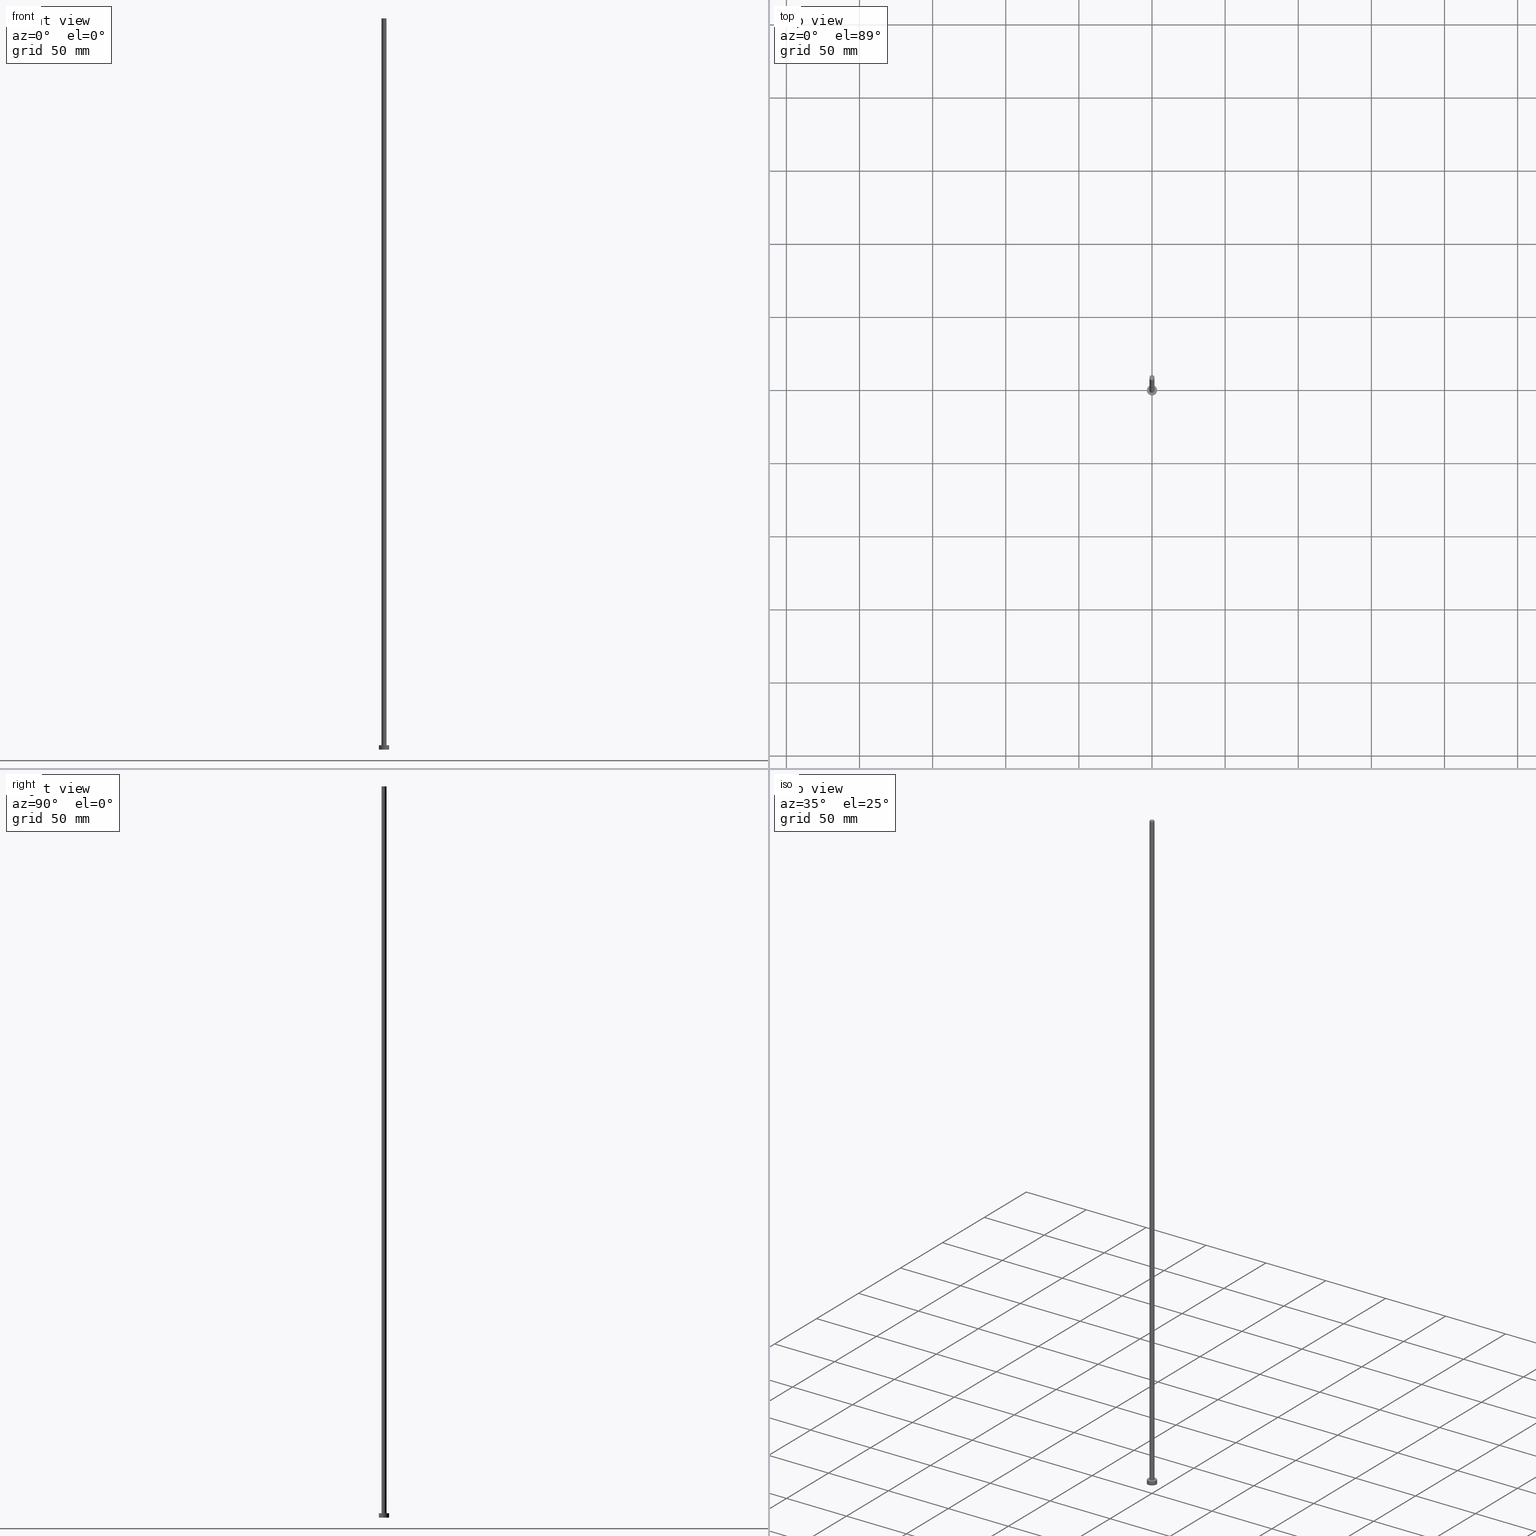
[diagram: canonical four-view strip — front | top / right | iso, engineering-drawing reading convention]
A machine part, canonical four-view strip (front | top / right | iso — engineering-drawing reading convention). The complete STEP part file that produces these views, byte-faithful:
ISO-10303-21;
HEADER;
FILE_DESCRIPTION (( 'STEP AP203' ),
    '1' );
FILE_NAME ('6f6c.STEP',
    '2023-02-12T12:40:46',
    ( '' ),
    ( '' ),
    'SwSTEP 2.0',
    'SolidWorks 2019',
    '' );
FILE_SCHEMA (( 'CONFIG_CONTROL_DESIGN' ));
ENDSEC;

DATA;
#1 = CIRCLE ( 'NONE', #238, 3.500000000000000444 ) ;
#2 = MANIFOLD_SOLID_BREP ( 'P�idat vysunut�m3', #151 ) ;
#3 = CYLINDRICAL_SURFACE ( 'NONE', #156, 3.500000000000000444 ) ;
#4 = EDGE_CURVE ( 'NONE', #187, #150, #153, .T. ) ;
#5 = LINE ( 'NONE', #60, #47 ) ;
#6 = FACE_OUTER_BOUND ( 'NONE', #209, .T. ) ;
#7 = COORDINATED_UNIVERSAL_TIME_OFFSET ( 1, 0, .AHEAD. ) ;
#8 = DIRECTION ( 'NONE',  ( 1.000000000000000000, 0.000000000000000000, 0.000000000000000000 ) ) ;
#9 = CC_DESIGN_PERSON_AND_ORGANIZATION_ASSIGNMENT ( #198, #223, ( #13 ) ) ;
#10 = CARTESIAN_POINT ( 'NONE',  ( 1.750000000000000000, 2.143131898507867804E-16, 500.0000000000000000 ) ) ;
#11 = DIRECTION ( 'NONE',  ( -0.000000000000000000, -0.000000000000000000, -1.000000000000000000 ) ) ;
#12 = PERSON ( 'NEUR�EN�', 'NEUR�EN�', 'NEUR�EN�', ('NEUR�EN�'), ('NEUR�EN�'), ('NEUR�EN�') ) ;
#13 = PRODUCT ( '6f6c', '6f6c', '', ( #44 ) ) ;
#14 = CARTESIAN_POINT ( 'NONE',  ( 0.000000000000000000, 0.000000000000000000, 3.000000000000000000 ) ) ;
#15 = ORIENTED_EDGE ( 'NONE', *, *, #188, .T. ) ;
#16 = PRODUCT_DEFINITION_SHAPE ( 'NONE', 'NONE',  #116 ) ;
#17 = CC_DESIGN_APPROVAL ( #216, ( #116 ) ) ;
#18 = CARTESIAN_POINT ( 'NONE',  ( -1.750000000000000000, 0.000000000000000000, 500.0000000000000000 ) ) ;
#19 = CARTESIAN_POINT ( 'NONE',  ( -3.500000000000000444, 0.000000000000000000, 0.000000000000000000 ) ) ;
#20 = CIRCLE ( 'NONE', #56, 3.500000000000000444 ) ;
#21 = VERTEX_POINT ( 'NONE', #135 ) ;
#22 = ADVANCED_FACE ( 'NONE', ( #58 ), #158, .F. ) ;
#23 = APPROVAL_PERSON_ORGANIZATION ( #204, #84, #181 ) ;
#24 = CC_DESIGN_APPROVAL ( #84, ( #33 ) ) ;
#25 = EDGE_CURVE ( 'NONE', #187, #212, #119, .T. ) ;
#26 = FACE_OUTER_BOUND ( 'NONE', #149, .T. ) ;
#27 = DIRECTION ( 'NONE',  ( 0.000000000000000000, 0.000000000000000000, 1.000000000000000000 ) ) ;
#28 = APPROVAL_STATUS ( 'not_yet_approved' ) ;
#29 = DIRECTION ( 'NONE',  ( 0.000000000000000000, 0.000000000000000000, 1.000000000000000000 ) ) ;
#30 = SECURITY_CLASSIFICATION_LEVEL ( 'unclassified' ) ;
#31 = LINE ( 'NONE', #10, #113 ) ;
#32 = PERSON_AND_ORGANIZATION_ROLE ( 'classification_officer' ) ;
#33 = SECURITY_CLASSIFICATION ( '', '', #30 ) ;
#34 = DIRECTION ( 'NONE',  ( -0.000000000000000000, -0.000000000000000000, -1.000000000000000000 ) ) ;
#35 = EDGE_LOOP ( 'NONE', ( #76, #194 ) ) ;
#36 = AXIS2_PLACEMENT_3D ( 'NONE', #105, #88, #241 ) ;
#37 = ADVANCED_FACE ( 'NONE', ( #177 ), #126, .T. ) ;
#38 = EDGE_LOOP ( 'NONE', ( #230, #193, #191, #133 ) ) ;
#39 = ORIENTED_EDGE ( 'NONE', *, *, #185, .T. ) ;
#40 = LOCAL_TIME ( 13, 40, 46.00000000000000000, #239 ) ;
#41 = APPLICATION_CONTEXT ( 'configuration controlled 3d designs of mechanical parts and assemblies' ) ;
#42 = EDGE_LOOP ( 'NONE', ( #215, #81 ) ) ;
#43 = EDGE_CURVE ( 'NONE', #111, #178, #143, .T. ) ;
#44 = MECHANICAL_CONTEXT ( 'NONE', #203, 'mechanical' ) ;
#45 = DIRECTION ( 'NONE',  ( 0.000000000000000000, 0.000000000000000000, 1.000000000000000000 ) ) ;
#46 =( NAMED_UNIT ( * ) SI_UNIT ( $, .STERADIAN. ) SOLID_ANGLE_UNIT ( ) );
#47 = VECTOR ( 'NONE', #34, 1000.000000000000000 ) ;
#48 = APPROVAL_DATE_TIME ( #137, #216 ) ;
#49 = ORIENTED_EDGE ( 'NONE', *, *, #134, .F. ) ;
#50 = DIRECTION ( 'NONE',  ( -0.000000000000000000, -0.000000000000000000, -1.000000000000000000 ) ) ;
#51 = VECTOR ( 'NONE', #64, 1000.000000000000000 ) ;
#52 = PERSON_AND_ORGANIZATION ( #12, #154 ) ;
#53 = CALENDAR_DATE ( 2023, 12, 2 ) ;
#54 = CYLINDRICAL_SURFACE ( 'NONE', #61, 3.500000000000000444 ) ;
#55 = DATE_TIME_ROLE ( 'classification_date' ) ;
#56 = AXIS2_PLACEMENT_3D ( 'NONE', #199, #165, #227 ) ;
#57 = DIRECTION ( 'NONE',  ( -0.000000000000000000, -0.000000000000000000, -1.000000000000000000 ) ) ;
#58 = FACE_OUTER_BOUND ( 'NONE', #95, .T. ) ;
#59 = CC_DESIGN_DATE_AND_TIME_ASSIGNMENT ( #146, #164, ( #116 ) ) ;
#60 = CARTESIAN_POINT ( 'NONE',  ( -3.500000000000000444, 0.000000000000000000, 3.000000000000000000 ) ) ;
#61 = AXIS2_PLACEMENT_3D ( 'NONE', #73, #147, #202 ) ;
#62 = CIRCLE ( 'NONE', #180, 1.750000000000000000 ) ;
#63 = ORIENTED_EDGE ( 'NONE', *, *, #250, .F. ) ;
#64 = DIRECTION ( 'NONE',  ( -0.000000000000000000, -0.000000000000000000, -1.000000000000000000 ) ) ;
#65 = CIRCLE ( 'NONE', #205, 1.750000000000000000 ) ;
#66 = CC_DESIGN_PERSON_AND_ORGANIZATION_ASSIGNMENT ( #142, #226, ( #102 ) ) ;
#67 = DIRECTION ( 'NONE',  ( 0.000000000000000000, 0.000000000000000000, 1.000000000000000000 ) ) ;
#68 =( LENGTH_UNIT ( ) NAMED_UNIT ( * ) SI_UNIT ( .MILLI., .METRE. ) );
#69 = CALENDAR_DATE ( 2023, 12, 2 ) ;
#70 = CARTESIAN_POINT ( 'NONE',  ( 0.000000000000000000, 0.000000000000000000, 0.000000000000000000 ) ) ;
#71 = CARTESIAN_POINT ( 'NONE',  ( 0.000000000000000000, 0.000000000000000000, 500.0000000000000000 ) ) ;
#72 = LOCAL_TIME ( 13, 40, 46.00000000000000000, #104 ) ;
#73 = CARTESIAN_POINT ( 'NONE',  ( 0.000000000000000000, 0.000000000000000000, 3.000000000000000000 ) ) ;
#74 = DATE_AND_TIME ( #168, #130 ) ;
#75 = CYLINDRICAL_SURFACE ( 'NONE', #129, 1.750000000000000000 ) ;
#76 = ORIENTED_EDGE ( 'NONE', *, *, #25, .T. ) ;
#77 = EDGE_CURVE ( 'NONE', #178, #112, #94, .T. ) ;
#78 = DIRECTION ( 'NONE',  ( 1.000000000000000000, 0.000000000000000000, 0.000000000000000000 ) ) ;
#79 = AXIS2_PLACEMENT_3D ( 'NONE', #161, #175, #8 ) ;
#80 = DIRECTION ( 'NONE',  ( 0.000000000000000000, 0.000000000000000000, 1.000000000000000000 ) ) ;
#81 = ORIENTED_EDGE ( 'NONE', *, *, #234, .T. ) ;
#82 = ADVANCED_FACE ( 'NONE', ( #6 ), #75, .T. ) ;
#83 = CARTESIAN_POINT ( 'NONE',  ( 0.000000000000000000, 0.000000000000000000, 500.0000000000000000 ) ) ;
#84 = APPROVAL ( #107, 'NEUR�EN�' ) ;
#85 = CARTESIAN_POINT ( 'NONE',  ( 0.000000000000000000, 0.000000000000000000, 3.000000000000000000 ) ) ;
#86 = EDGE_CURVE ( 'NONE', #21, #111, #20, .T. ) ;
#87 = CIRCLE ( 'NONE', #236, 3.500000000000000444 ) ;
#88 = DIRECTION ( 'NONE',  ( -0.000000000000000000, -0.000000000000000000, -1.000000000000000000 ) ) ;
#89 = ORIENTED_EDGE ( 'NONE', *, *, #207, .F. ) ;
#90 = COORDINATED_UNIVERSAL_TIME_OFFSET ( 1, 0, .AHEAD. ) ;
#91 = ADVANCED_FACE ( 'NONE', ( #26 ), #54, .T. ) ;
#92 = DATE_AND_TIME ( #245, #93 ) ;
#93 = LOCAL_TIME ( 13, 40, 46.00000000000000000, #7 ) ;
#94 = CIRCLE ( 'NONE', #210, 3.500000000000000444 ) ;
#95 = EDGE_LOOP ( 'NONE', ( #49, #254 ) ) ;
#96 = EDGE_LOOP ( 'NONE', ( #89, #217 ) ) ;
#97 = CARTESIAN_POINT ( 'NONE',  ( 0.000000000000000000, 0.000000000000000000, 0.000000000000000000 ) ) ;
#98 = ADVANCED_FACE ( 'NONE', ( #219 ), #100, .T. ) ;
#99 = EDGE_LOOP ( 'NONE', ( #63, #248, #15, #132 ) ) ;
#100 = PLANE ( 'NONE',  #163 ) ;
#101 = ORIENTED_EDGE ( 'NONE', *, *, #4, .T. ) ;
#102 = PRODUCT_DEFINITION_FORMATION_WITH_SPECIFIED_SOURCE ( 'LIBOVOLN�', '', #13, .NOT_KNOWN. ) ;
#103 = CARTESIAN_POINT ( 'NONE',  ( 3.500000000000000444, 4.286263797015737088E-16, 0.000000000000000000 ) ) ;
#104 = COORDINATED_UNIVERSAL_TIME_OFFSET ( 1, 0, .AHEAD. ) ;
#105 = CARTESIAN_POINT ( 'NONE',  ( 0.000000000000000000, 0.000000000000000000, 500.0000000000000000 ) ) ;
#106 = APPROVAL_PERSON_ORGANIZATION ( #195, #216, #174 ) ;
#107 = APPROVAL_STATUS ( 'not_yet_approved' ) ;
#108 = DIRECTION ( 'NONE',  ( 1.000000000000000000, 0.000000000000000000, 0.000000000000000000 ) ) ;
#109 = APPROVAL_DATE_TIME ( #124, #220 ) ;
#110 = AXIS2_PLACEMENT_3D ( 'NONE', #252, #80, #189 ) ;
#111 = VERTEX_POINT ( 'NONE', #152 ) ;
#112 = VERTEX_POINT ( 'NONE', #19 ) ;
#113 = VECTOR ( 'NONE', #57, 1000.000000000000000 ) ;
#114 = ORIENTED_EDGE ( 'NONE', *, *, #134, .T. ) ;
#115 = CARTESIAN_POINT ( 'NONE',  ( 0.000000000000000000, 0.000000000000000000, 500.0000000000000000 ) ) ;
#116 = PRODUCT_DEFINITION ( 'NEZN�M�', '', #102, #253 ) ;
#117 = DIRECTION ( 'NONE',  ( 1.000000000000000000, 0.000000000000000000, -0.000000000000000000 ) ) ;
#118 = DIRECTION ( 'NONE',  ( 1.000000000000000000, 0.000000000000000000, 0.000000000000000000 ) ) ;
#119 = CIRCLE ( 'NONE', #79, 1.750000000000000000 ) ;
#120 = APPLICATION_PROTOCOL_DEFINITION ( 'international standard', 'config_control_design', 1994, #41 ) ;
#121 = DIRECTION ( 'NONE',  ( -1.000000000000000000, 0.000000000000000000, 0.000000000000000000 ) ) ;
#122 = CC_DESIGN_PERSON_AND_ORGANIZATION_ASSIGNMENT ( #197, #200, ( #116 ) ) ;
#123 = FACE_OUTER_BOUND ( 'NONE', #42, .T. ) ;
#124 = DATE_AND_TIME ( #228, #72 ) ;
#125 = AXIS2_PLACEMENT_3D ( 'NONE', #182, #29, #148 ) ;
#126 = CYLINDRICAL_SURFACE ( 'NONE', #36, 1.750000000000000000 ) ;
#127 = CC_DESIGN_DATE_AND_TIME_ASSIGNMENT ( #92, #55, ( #33 ) ) ;
#128 = APPLICATION_PROTOCOL_DEFINITION ( 'international standard', 'config_control_design', 1994, #203 ) ;
#129 = AXIS2_PLACEMENT_3D ( 'NONE', #71, #50, #121 ) ;
#130 = LOCAL_TIME ( 13, 40, 46.00000000000000000, #90 ) ;
#131 = UNCERTAINTY_MEASURE_WITH_UNIT (LENGTH_MEASURE( 1.000000000000000082E-05 ), #68, 'distance_accuracy_value', 'NONE');
#132 = ORIENTED_EDGE ( 'NONE', *, *, #4, .F. ) ;
#133 = ORIENTED_EDGE ( 'NONE', *, *, #185, .F. ) ;
#134 = EDGE_CURVE ( 'NONE', #112, #178, #87, .T. ) ;
#135 = CARTESIAN_POINT ( 'NONE',  ( -3.500000000000000444, 0.000000000000000000, 3.000000000000000000 ) ) ;
#136 = CARTESIAN_POINT ( 'NONE',  ( 0.000000000000000000, 0.000000000000000000, 3.000000000000000000 ) ) ;
#137 = DATE_AND_TIME ( #69, #40 ) ;
#138 = DIRECTION ( 'NONE',  ( 1.000000000000000000, 0.000000000000000000, 0.000000000000000000 ) ) ;
#139 = DIRECTION ( 'NONE',  ( 0.000000000000000000, 0.000000000000000000, 1.000000000000000000 ) ) ;
#140 = EDGE_CURVE ( 'NONE', #212, #232, #31, .T. ) ;
#141 = VECTOR ( 'NONE', #11, 1000.000000000000000 ) ;
#142 = PERSON_AND_ORGANIZATION ( #12, #154 ) ;
#143 = LINE ( 'NONE', #246, #141 ) ;
#144 =( GEOMETRIC_REPRESENTATION_CONTEXT ( 3 ) GLOBAL_UNCERTAINTY_ASSIGNED_CONTEXT ( ( #131 ) ) GLOBAL_UNIT_ASSIGNED_CONTEXT ( ( #68, #173, #46 ) ) REPRESENTATION_CONTEXT ( 'NONE', 'WORKASPACE' ) );
#145 = ADVANCED_FACE ( 'NONE', ( #206 ), #3, .T. ) ;
#146 = DATE_AND_TIME ( #53, #244 ) ;
#147 = DIRECTION ( 'NONE',  ( -0.000000000000000000, -0.000000000000000000, -1.000000000000000000 ) ) ;
#148 = DIRECTION ( 'NONE',  ( 1.000000000000000000, 0.000000000000000000, -0.000000000000000000 ) ) ;
#149 = EDGE_LOOP ( 'NONE', ( #196, #162, #39, #114 ) ) ;
#150 = VERTEX_POINT ( 'NONE', #159 ) ;
#151 = CLOSED_SHELL ( 'NONE', ( #37, #145, #91, #155, #22, #82, #98 ) ) ;
#152 = CARTESIAN_POINT ( 'NONE',  ( 3.500000000000000444, 4.286263797015737088E-16, 3.000000000000000000 ) ) ;
#153 = LINE ( 'NONE', #18, #51 ) ;
#154 = ORGANIZATION ( 'NEUR�EN�', 'NEUR�EN�', '' ) ;
#155 = ADVANCED_FACE ( 'NONE', ( #240, #123 ), #222, .T. ) ;
#156 = AXIS2_PLACEMENT_3D ( 'NONE', #85, #183, #157 ) ;
#157 = DIRECTION ( 'NONE',  ( -1.000000000000000000, 0.000000000000000000, 0.000000000000000000 ) ) ;
#158 = PLANE ( 'NONE',  #125 ) ;
#159 = CARTESIAN_POINT ( 'NONE',  ( -1.750000000000000000, 0.000000000000000000, 3.000000000000000000 ) ) ;
#160 = APPROVAL_ROLE ( '' ) ;
#161 = CARTESIAN_POINT ( 'NONE',  ( 0.000000000000000000, 0.000000000000000000, 500.0000000000000000 ) ) ;
#162 = ORIENTED_EDGE ( 'NONE', *, *, #86, .F. ) ;
#163 = AXIS2_PLACEMENT_3D ( 'NONE', #83, #45, #117 ) ;
#164 = DATE_TIME_ROLE ( 'creation_date' ) ;
#165 = DIRECTION ( 'NONE',  ( 0.000000000000000000, 0.000000000000000000, 1.000000000000000000 ) ) ;
#166 = CC_DESIGN_SECURITY_CLASSIFICATION ( #33, ( #102 ) ) ;
#167 = PERSON_AND_ORGANIZATION ( #12, #154 ) ;
#168 = CALENDAR_DATE ( 2023, 12, 2 ) ;
#169 = ORIENTED_EDGE ( 'NONE', *, *, #140, .F. ) ;
#170 = ADVANCED_BREP_SHAPE_REPRESENTATION ( '6f6c', ( #2, #214 ), #144 ) ;
#171 = CC_DESIGN_PERSON_AND_ORGANIZATION_ASSIGNMENT ( #179, #201, ( #102 ) ) ;
#172 = APPROVAL_PERSON_ORGANIZATION ( #52, #220, #160 ) ;
#173 =( NAMED_UNIT ( * ) PLANE_ANGLE_UNIT ( ) SI_UNIT ( $, .RADIAN. ) );
#174 = APPROVAL_ROLE ( '' ) ;
#175 = DIRECTION ( 'NONE',  ( 0.000000000000000000, 0.000000000000000000, 1.000000000000000000 ) ) ;
#176 = DIRECTION ( 'NONE',  ( 0.000000000000000000, 0.000000000000000000, 1.000000000000000000 ) ) ;
#177 = FACE_OUTER_BOUND ( 'NONE', #99, .T. ) ;
#178 = VERTEX_POINT ( 'NONE', #103 ) ;
#179 = PERSON_AND_ORGANIZATION ( #12, #154 ) ;
#180 = AXIS2_PLACEMENT_3D ( 'NONE', #14, #251, #78 ) ;
#181 = APPROVAL_ROLE ( '' ) ;
#182 = CARTESIAN_POINT ( 'NONE',  ( 0.000000000000000000, 0.000000000000000000, 0.000000000000000000 ) ) ;
#183 = DIRECTION ( 'NONE',  ( -0.000000000000000000, -0.000000000000000000, -1.000000000000000000 ) ) ;
#184 = SHAPE_DEFINITION_REPRESENTATION ( #16, #170 ) ;
#185 = EDGE_CURVE ( 'NONE', #21, #112, #5, .T. ) ;
#186 = CARTESIAN_POINT ( 'NONE',  ( -1.750000000000000000, 0.000000000000000000, 500.0000000000000000 ) ) ;
#187 = VERTEX_POINT ( 'NONE', #186 ) ;
#188 = EDGE_CURVE ( 'NONE', #232, #150, #62, .T. ) ;
#189 = DIRECTION ( 'NONE',  ( 1.000000000000000000, 0.000000000000000000, 0.000000000000000000 ) ) ;
#190 = AXIS2_PLACEMENT_3D ( 'NONE', #242, #27, #243 ) ;
#191 = ORIENTED_EDGE ( 'NONE', *, *, #77, .T. ) ;
#192 = APPROVAL_STATUS ( 'not_yet_approved' ) ;
#193 = ORIENTED_EDGE ( 'NONE', *, *, #43, .T. ) ;
#194 = ORIENTED_EDGE ( 'NONE', *, *, #250, .T. ) ;
#195 = PERSON_AND_ORGANIZATION ( #12, #154 ) ;
#196 = ORIENTED_EDGE ( 'NONE', *, *, #43, .F. ) ;
#197 = PERSON_AND_ORGANIZATION ( #12, #154 ) ;
#198 = PERSON_AND_ORGANIZATION ( #12, #154 ) ;
#199 = CARTESIAN_POINT ( 'NONE',  ( 0.000000000000000000, 0.000000000000000000, 3.000000000000000000 ) ) ;
#200 = PERSON_AND_ORGANIZATION_ROLE ( 'creator' ) ;
#201 = PERSON_AND_ORGANIZATION_ROLE ( 'design_supplier' ) ;
#202 = DIRECTION ( 'NONE',  ( -1.000000000000000000, 0.000000000000000000, 0.000000000000000000 ) ) ;
#203 = APPLICATION_CONTEXT ( 'configuration controlled 3d designs of mechanical parts and assemblies' ) ;
#204 = PERSON_AND_ORGANIZATION ( #12, #154 ) ;
#205 = AXIS2_PLACEMENT_3D ( 'NONE', #115, #255, #237 ) ;
#206 = FACE_OUTER_BOUND ( 'NONE', #38, .T. ) ;
#207 = EDGE_CURVE ( 'NONE', #150, #232, #211, .T. ) ;
#208 = COORDINATED_UNIVERSAL_TIME_OFFSET ( 1, 0, .AHEAD. ) ;
#209 = EDGE_LOOP ( 'NONE', ( #169, #233, #101, #221 ) ) ;
#210 = AXIS2_PLACEMENT_3D ( 'NONE', #247, #139, #225 ) ;
#211 = CIRCLE ( 'NONE', #110, 1.750000000000000000 ) ;
#212 = VERTEX_POINT ( 'NONE', #213 ) ;
#213 = CARTESIAN_POINT ( 'NONE',  ( 1.750000000000000000, 2.143131898507867804E-16, 500.0000000000000000 ) ) ;
#214 = AXIS2_PLACEMENT_3D ( 'NONE', #70, #67, #138 ) ;
#215 = ORIENTED_EDGE ( 'NONE', *, *, #86, .T. ) ;
#216 = APPROVAL ( #192, 'NEUR�EN�' ) ;
#217 = ORIENTED_EDGE ( 'NONE', *, *, #188, .F. ) ;
#218 = DIRECTION ( 'NONE',  ( 0.000000000000000000, 0.000000000000000000, 1.000000000000000000 ) ) ;
#219 = FACE_OUTER_BOUND ( 'NONE', #35, .T. ) ;
#220 = APPROVAL ( #28, 'NEUR�EN�' ) ;
#221 = ORIENTED_EDGE ( 'NONE', *, *, #207, .T. ) ;
#222 = PLANE ( 'NONE',  #190 ) ;
#223 = PERSON_AND_ORGANIZATION_ROLE ( 'design_owner' ) ;
#224 = PRODUCT_RELATED_PRODUCT_CATEGORY ( 'detail', '', ( #13 ) ) ;
#225 = DIRECTION ( 'NONE',  ( 1.000000000000000000, 0.000000000000000000, 0.000000000000000000 ) ) ;
#226 = PERSON_AND_ORGANIZATION_ROLE ( 'creator' ) ;
#227 = DIRECTION ( 'NONE',  ( 1.000000000000000000, 0.000000000000000000, 0.000000000000000000 ) ) ;
#228 = CALENDAR_DATE ( 2023, 12, 2 ) ;
#229 = APPROVAL_DATE_TIME ( #74, #84 ) ;
#230 = ORIENTED_EDGE ( 'NONE', *, *, #234, .F. ) ;
#231 = CC_DESIGN_PERSON_AND_ORGANIZATION_ASSIGNMENT ( #167, #32, ( #33 ) ) ;
#232 = VERTEX_POINT ( 'NONE', #235 ) ;
#233 = ORIENTED_EDGE ( 'NONE', *, *, #25, .F. ) ;
#234 = EDGE_CURVE ( 'NONE', #111, #21, #1, .T. ) ;
#235 = CARTESIAN_POINT ( 'NONE',  ( 1.750000000000000000, 2.143131898507867804E-16, 3.000000000000000000 ) ) ;
#236 = AXIS2_PLACEMENT_3D ( 'NONE', #97, #176, #108 ) ;
#237 = DIRECTION ( 'NONE',  ( 1.000000000000000000, 0.000000000000000000, 0.000000000000000000 ) ) ;
#238 = AXIS2_PLACEMENT_3D ( 'NONE', #136, #218, #118 ) ;
#239 = COORDINATED_UNIVERSAL_TIME_OFFSET ( 1, 0, .AHEAD. ) ;
#240 = FACE_BOUND ( 'NONE', #96, .T. ) ;
#241 = DIRECTION ( 'NONE',  ( -1.000000000000000000, 0.000000000000000000, 0.000000000000000000 ) ) ;
#242 = CARTESIAN_POINT ( 'NONE',  ( 0.000000000000000000, 0.000000000000000000, 3.000000000000000000 ) ) ;
#243 = DIRECTION ( 'NONE',  ( 1.000000000000000000, 0.000000000000000000, -0.000000000000000000 ) ) ;
#244 = LOCAL_TIME ( 13, 40, 46.00000000000000000, #208 ) ;
#245 = CALENDAR_DATE ( 2023, 12, 2 ) ;
#246 = CARTESIAN_POINT ( 'NONE',  ( 3.500000000000000444, 4.286263797015737088E-16, 3.000000000000000000 ) ) ;
#247 = CARTESIAN_POINT ( 'NONE',  ( 0.000000000000000000, 0.000000000000000000, 0.000000000000000000 ) ) ;
#248 = ORIENTED_EDGE ( 'NONE', *, *, #140, .T. ) ;
#249 = CC_DESIGN_APPROVAL ( #220, ( #102 ) ) ;
#250 = EDGE_CURVE ( 'NONE', #212, #187, #65, .T. ) ;
#251 = DIRECTION ( 'NONE',  ( 0.000000000000000000, 0.000000000000000000, 1.000000000000000000 ) ) ;
#252 = CARTESIAN_POINT ( 'NONE',  ( 0.000000000000000000, 0.000000000000000000, 3.000000000000000000 ) ) ;
#253 = DESIGN_CONTEXT ( 'detailed design', #41, 'design' ) ;
#254 = ORIENTED_EDGE ( 'NONE', *, *, #77, .F. ) ;
#255 = DIRECTION ( 'NONE',  ( 0.000000000000000000, 0.000000000000000000, 1.000000000000000000 ) ) ;
ENDSEC;
END-ISO-10303-21;
